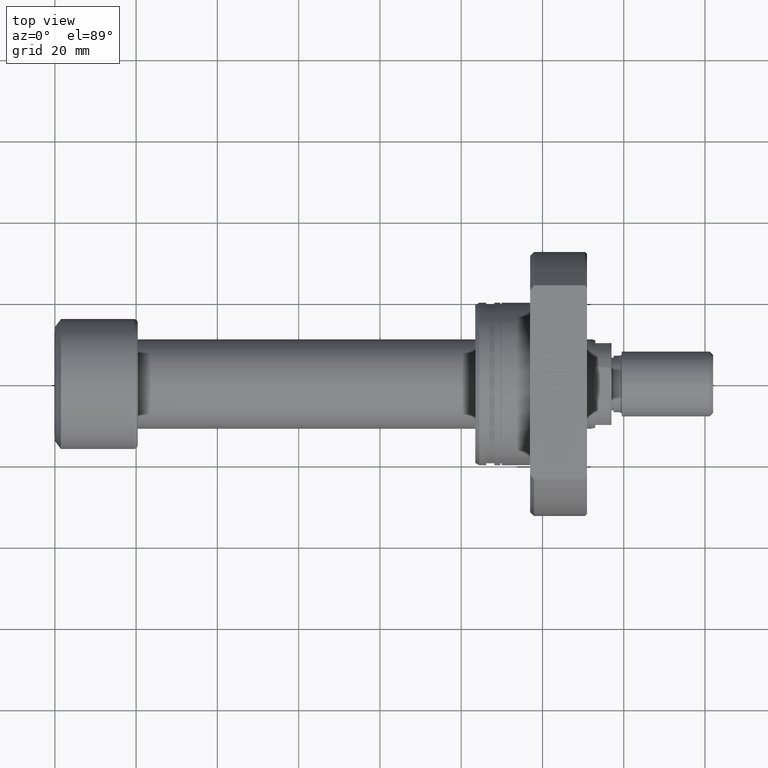
[diagram: clean part render]
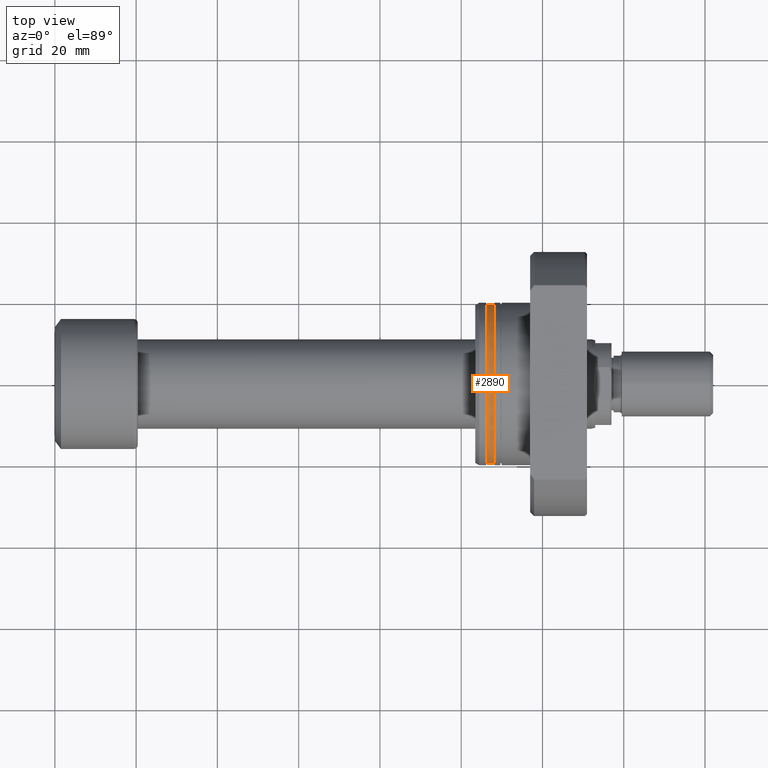
[diagram: same view with one face highlighted and labeled with its STEP entity id]
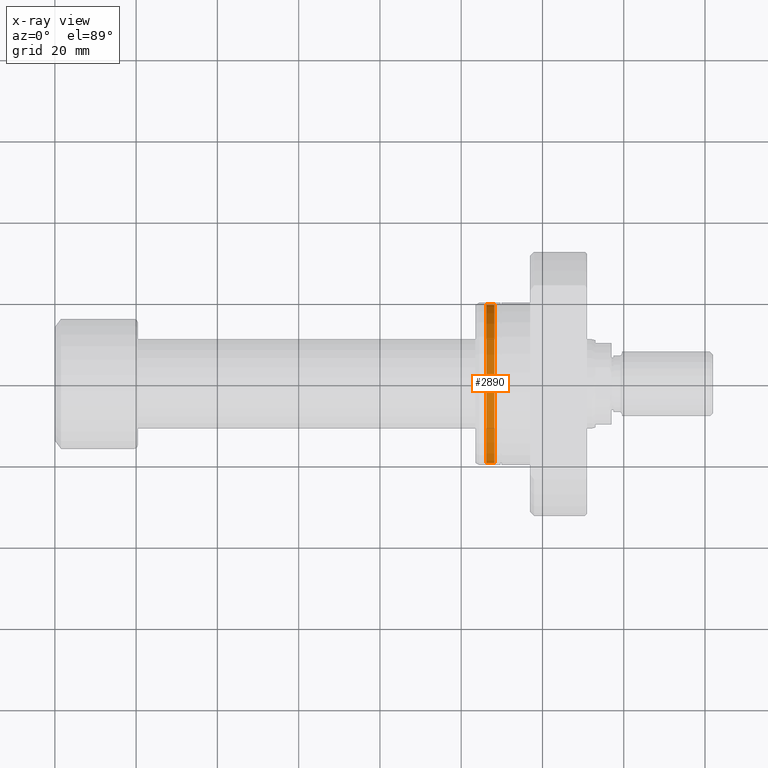
[diagram: x-ray of the same camera — body ghosted, the highlighted face saturated]
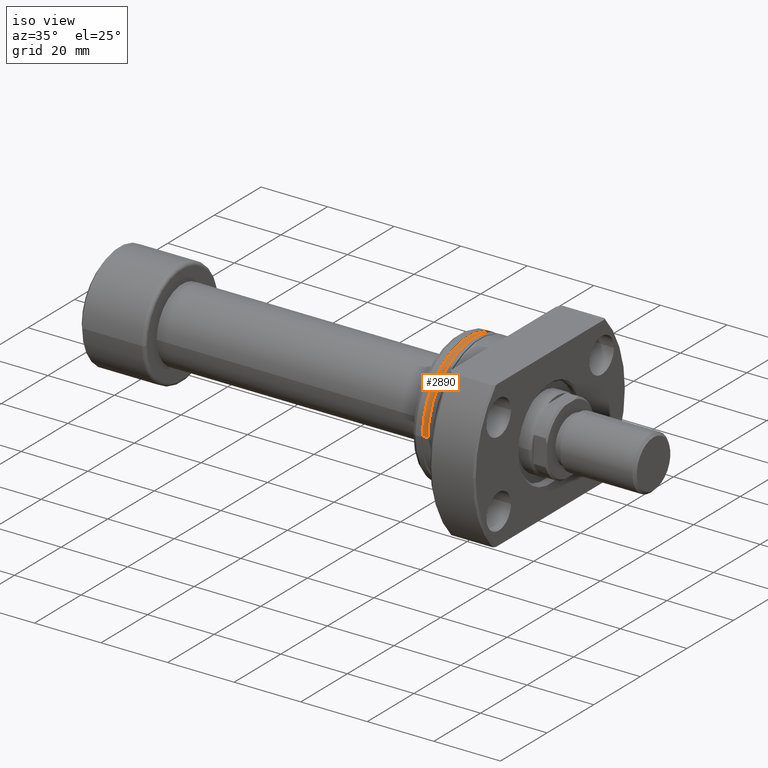
[diagram: same view with one face highlighted and labeled with its STEP entity id]
A machine part, top view. The second image highlights one B-rep face of the part: STEP entity #2890.
The next image is the same camera in x-ray: the body ghosted, the highlighted face saturated — about 0% of this face is hidden behind the body in this view.
A second angle (iso view) of the same face is appended — the face is thin or edge-on in the first view.
In plain terms, the highlighted cylindrical surface (partial cylindrical patch) has radius 19.5 mm, axis along (1, 0, 0).
Its self-contained STEP definition (entity closure, byte-faithful):
#182 = EDGE_CURVE ( 'NONE', #2745, #499, #647, .T. ) ;
#229 = ORIENTED_EDGE ( 'NONE', *, *, #512, .T. ) ;
#278 = CARTESIAN_POINT ( 'NONE',  ( 27.50000000000000355, -19.49999999999999645, 2.388061258337338544E-15 ) ) ;
#331 = VERTEX_POINT ( 'NONE', #2864 ) ;
#499 = VERTEX_POINT ( 'NONE', #2220 ) ;
#512 = EDGE_CURVE ( 'NONE', #331, #499, #2492, .T. ) ;
#542 = DIRECTION ( 'NONE',  ( 0.000000000000000000, 1.000000000000000000, 0.000000000000000000 ) ) ;
#647 = CIRCLE ( 'NONE', #1256, 19.49999999999999645 ) ;
#751 = CARTESIAN_POINT ( 'NONE',  ( 2.699999999999785683, 19.49999999999999289, 0.000000000000000000 ) ) ;
#761 = VECTOR ( 'NONE', #2862, 1000.000000000000000 ) ;
#784 = CYLINDRICAL_SURFACE ( 'NONE', #3618, 19.49999999999999645 ) ;
#866 = LINE ( 'NONE', #1400, #761 ) ;
#1134 = FACE_OUTER_BOUND ( 'NONE', #2797, .T. ) ;
#1256 = AXIS2_PLACEMENT_3D ( 'NONE', #3364, #1344, #1896 ) ;
#1344 = DIRECTION ( 'NONE',  ( 1.000000000000000000, 1.335978326342566810E-17, -0.000000000000000000 ) ) ;
#1373 = AXIS2_PLACEMENT_3D ( 'NONE', #2557, #3312, #3434 ) ;
#1382 = VERTEX_POINT ( 'NONE', #751 ) ;
#1400 = CARTESIAN_POINT ( 'NONE',  ( 27.50000000000000355, 19.49999999999999645, 0.000000000000000000 ) ) ;
#1896 = DIRECTION ( 'NONE',  ( 0.000000000000000000, 1.000000000000000000, 0.000000000000000000 ) ) ;
#2081 = CIRCLE ( 'NONE', #1373, 19.49999999999999289 ) ;
#2111 = EDGE_CURVE ( 'NONE', #1382, #2745, #866, .T. ) ;
#2220 = CARTESIAN_POINT ( 'NONE',  ( 4.699999999998548894, -19.49999999999999645, 2.388061258337338544E-15 ) ) ;
#2291 = VECTOR ( 'NONE', #3369, 1000.000000000000000 ) ;
#2374 = CARTESIAN_POINT ( 'NONE',  ( 4.699999999998548894, 19.49999999999999645, 0.000000000000000000 ) ) ;
#2403 = ORIENTED_EDGE ( 'NONE', *, *, #3484, .T. ) ;
#2461 = ORIENTED_EDGE ( 'NONE', *, *, #182, .F. ) ;
#2492 = LINE ( 'NONE', #278, #2291 ) ;
#2528 = DIRECTION ( 'NONE',  ( 1.000000000000000000, 1.335978326342566810E-17, -0.000000000000000000 ) ) ;
#2557 = CARTESIAN_POINT ( 'NONE',  ( 2.699999999999786127, 3.607141481124643254E-17, 0.000000000000000000 ) ) ;
#2745 = VERTEX_POINT ( 'NONE', #2374 ) ;
#2797 = EDGE_LOOP ( 'NONE', ( #2403, #229, #2461, #2984 ) ) ;
#2862 = DIRECTION ( 'NONE',  ( 1.000000000000000000, 1.335978326342566810E-17, -0.000000000000000000 ) ) ;
#2864 = CARTESIAN_POINT ( 'NONE',  ( 2.699999999999786127, -19.49999999999999289, 2.388061258337338150E-15 ) ) ;
#2890 = ADVANCED_FACE ( 'NONE', ( #1134 ), #784, .T. ) ;
#2984 = ORIENTED_EDGE ( 'NONE', *, *, #2111, .F. ) ;
#3312 = DIRECTION ( 'NONE',  ( 1.000000000000000000, 1.335978326342566810E-17, -0.000000000000000000 ) ) ;
#3364 = CARTESIAN_POINT ( 'NONE',  ( 4.699999999998548894, 6.279098133808125197E-17, 0.000000000000000000 ) ) ;
#3369 = DIRECTION ( 'NONE',  ( 1.000000000000000000, 1.335978326342566810E-17, -0.000000000000000000 ) ) ;
#3370 = CARTESIAN_POINT ( 'NONE',  ( 27.50000000000000355, 3.673940397442059375E-16, 0.000000000000000000 ) ) ;
#3434 = DIRECTION ( 'NONE',  ( -2.224004456380522643E-17, 1.000000000000000000, 0.000000000000000000 ) ) ;
#3484 = EDGE_CURVE ( 'NONE', #1382, #331, #2081, .T. ) ;
#3618 = AXIS2_PLACEMENT_3D ( 'NONE', #3370, #2528, #542 ) ;